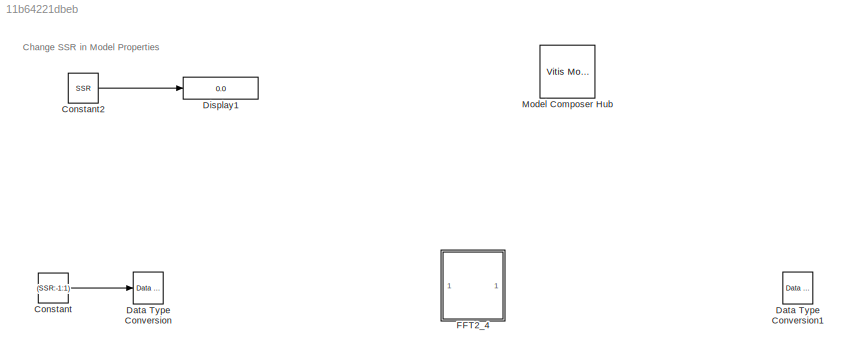
MODEL slx_11b64221dbeb
KIND model
CONFIG AbsTol = auto
CONFIG EnableMultiTasking = off
CONFIG FixedStep = auto
CONFIG InitFcn = SSR=8;
CONFIG MaxStep = auto
CONFIG MinStep = auto
CONFIG RelTol = 1e-3
CONFIG SampleTimeConstraint = Unconstrained
CONFIG SolverName = VariableStepAuto
CONFIG StartTime = 0.0
CONFIG StopTime = 10.0
BLOCK [Constant] Constant
  SampleTime = 1
  Value = (SSR:-1:1)
BLOCK [Constant] Constant2
  SampleTime = 1
  Value = SSR
  VectorParams1D = off
BLOCK [Reference] Data Type Conversion  REF=hlsBasic/Data Type Conversion
  SourceBlock = hlsBasic/Data Type Conversion
  SourceType = DTC
BLOCK [Reference] Data Type Conversion1  REF=hlsBasic/Data Type Conversion
  SourceBlock = hlsBasic/Data Type Conversion
  SourceType = DTC
BLOCK [Display] Display1
  Decimation = 1
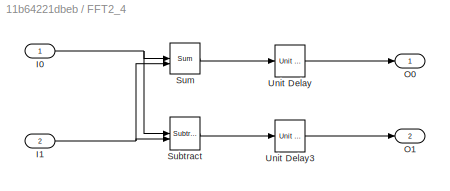
BLOCK [SubSystem] FFT2_4
BLOCK [Inport] FFT2_4/I0
BLOCK [Inport] FFT2_4/I1
  Port = 2
BLOCK [Outport] FFT2_4/O0
BLOCK [Outport] FFT2_4/O1
  Port = 2
BLOCK [Reference] FFT2_4/Subtract  REF=hlsBasic/Subtract
  SourceBlock = hlsBasic/Subtract
  SourceType = Subtract
BLOCK [Reference] FFT2_4/Sum  REF=hlsBasic/Sum
  SourceBlock = hlsBasic/Sum
  SourceType = Sum
BLOCK [Reference] FFT2_4/Unit Delay  REF=hlsBasic/Unit Delay
  SourceBlock = hlsBasic/Unit Delay
  SourceType = Unit Delay
BLOCK [Reference] FFT2_4/Unit Delay3  REF=hlsBasic/Unit Delay
  SourceBlock = hlsBasic/Unit Delay
  SourceType = Unit Delay
BLOCK [Reference] Model Composer Hub  REF=vmcUtilities/Vitis Model Composer Hub
  SourceBlock = vmcUtilities/Vitis Model Composer Hub
  SourceType = VMC Hub
  Tag = genX
ANNOTATION (root): Change SSR in Model Properties
LINE Constant2:1 -> Display1:1
LINE Constant:1 -> Data Type Conversion:1
NET FFT2_4/I0:1 -> FFT2_4/Subtract:1, FFT2_4/Sum:1
NET FFT2_4/I1:1 -> FFT2_4/Subtract:2, FFT2_4/Sum:2
LINE FFT2_4/Subtract:1 -> FFT2_4/Unit Delay3:1
LINE FFT2_4/Sum:1 -> FFT2_4/Unit Delay:1
LINE FFT2_4/Unit Delay3:1 -> FFT2_4/O1:1
LINE FFT2_4/Unit Delay:1 -> FFT2_4/O0:1
note: NET lines group one-source signal fan-out (src -> all destinations, sorted); 1:1 wires keep LINE
